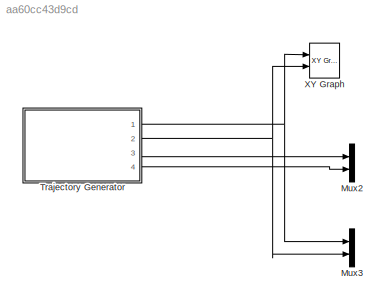
MODEL slx_aa60cc43d9cd
KIND model
CONFIG AbsTol = auto
CONFIG FixedStep = auto
CONFIG MaxStep = auto
CONFIG MinStep = auto
CONFIG RelTol = 1e-3
CONFIG SampleTimeConstraint = Unconstrained
CONFIG Solver = ode45
CONFIG SolverMode = Auto
CONFIG SolverName = ode45
CONFIG StartTime = 0.0
CONFIG StopTime = 20
BLOCK [Mux] Mux2
  DisplayOption = bar
  Inputs = 2
  Ports = [2, 1]
BLOCK [Mux] Mux3
  DisplayOption = bar
  Inputs = 2
  Ports = [2, 1]
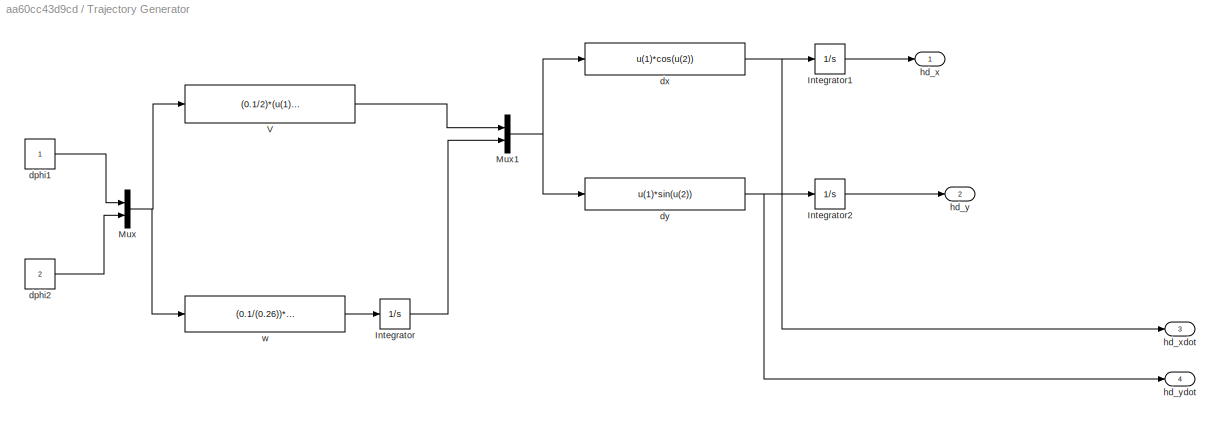
BLOCK [SubSystem] Trajectory Generator
  Ports = [0, 4]
  RequestExecContextInheritance = off
  Variant = off
BLOCK [Integrator] Trajectory Generator/Integrator
  InitialCondition = 3.141
  Ports = [1, 1]
BLOCK [Integrator] Trajectory Generator/Integrator1
  InitialCondition = 2.3
  Ports = [1, 1]
BLOCK [Integrator] Trajectory Generator/Integrator2
  Ports = [1, 1]
BLOCK [Mux] Trajectory Generator/Mux
  DisplayOption = bar
  Inputs = 2
  Ports = [2, 1]
BLOCK [Mux] Trajectory Generator/Mux1
  DisplayOption = bar
  Inputs = 2
  Ports = [2, 1]
BLOCK [Fcn] Trajectory Generator/V
  Expr = (0.1/2)*(u(1)+u(2))
BLOCK [Constant] Trajectory Generator/dphi1
BLOCK [Constant] Trajectory Generator/dphi2
  Value = 2
BLOCK [Fcn] Trajectory Generator/dx
  Expr = u(1)*cos(u(2))
BLOCK [Fcn] Trajectory Generator/dy
  Expr = u(1)*sin(u(2))
BLOCK [Outport] Trajectory Generator/hd_x
  IconDisplay = Port number
BLOCK [Outport] Trajectory Generator/hd_xdot
  IconDisplay = Port number
  Port = 3
BLOCK [Outport] Trajectory Generator/hd_y
  IconDisplay = Port number
  Port = 2
BLOCK [Outport] Trajectory Generator/hd_ydot
  IconDisplay = Port number
  Port = 4
BLOCK [Fcn] Trajectory Generator/w
  Expr = (0.1/(0.26))*(u(1)-u(2))
BLOCK [Reference] XY Graph  REF=simulink/Sinks/XY Graph
  Ports = [2]
  SourceBlock = simulink/Sinks/XY Graph
  SourceType = XY scope.
  st = -1
  xmax = 3
  xmin = 0
  ymax = 3
  ymin = 0
LINE Trajectory Generator/Integrator1:1 -> Trajectory Generator/hd_x:1
LINE Trajectory Generator/Integrator2:1 -> Trajectory Generator/hd_y:1
LINE Trajectory Generator/Integrator:1 -> Trajectory Generator/Mux1:2
NET Trajectory Generator/Mux1:1 -> Trajectory Generator/dx:1, Trajectory Generator/dy:1
NET Trajectory Generator/Mux:1 -> Trajectory Generator/V:1, Trajectory Generator/w:1
LINE Trajectory Generator/V:1 -> Trajectory Generator/Mux1:1
LINE Trajectory Generator/dphi1:1 -> Trajectory Generator/Mux:1
LINE Trajectory Generator/dphi2:1 -> Trajectory Generator/Mux:2
NET Trajectory Generator/dx:1 -> Trajectory Generator/Integrator1:1, Trajectory Generator/hd_xdot:1
NET Trajectory Generator/dy:1 -> Trajectory Generator/Integrator2:1, Trajectory Generator/hd_ydot:1
LINE Trajectory Generator/w:1 -> Trajectory Generator/Integrator:1
NET Trajectory Generator:1 -> Mux3:1, XY Graph:1
NET Trajectory Generator:2 -> Mux3:2, XY Graph:2
LINE Trajectory Generator:3 -> Mux2:1
LINE Trajectory Generator:4 -> Mux2:2
note: NET lines group one-source signal fan-out (src -> all destinations, sorted); 1:1 wires keep LINE
